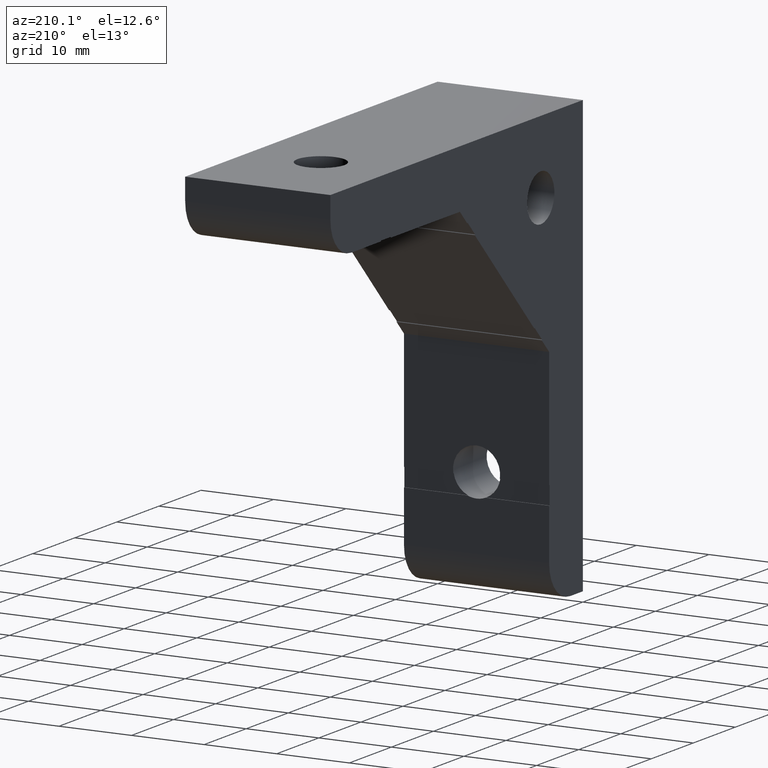
[diagram: clean part render]
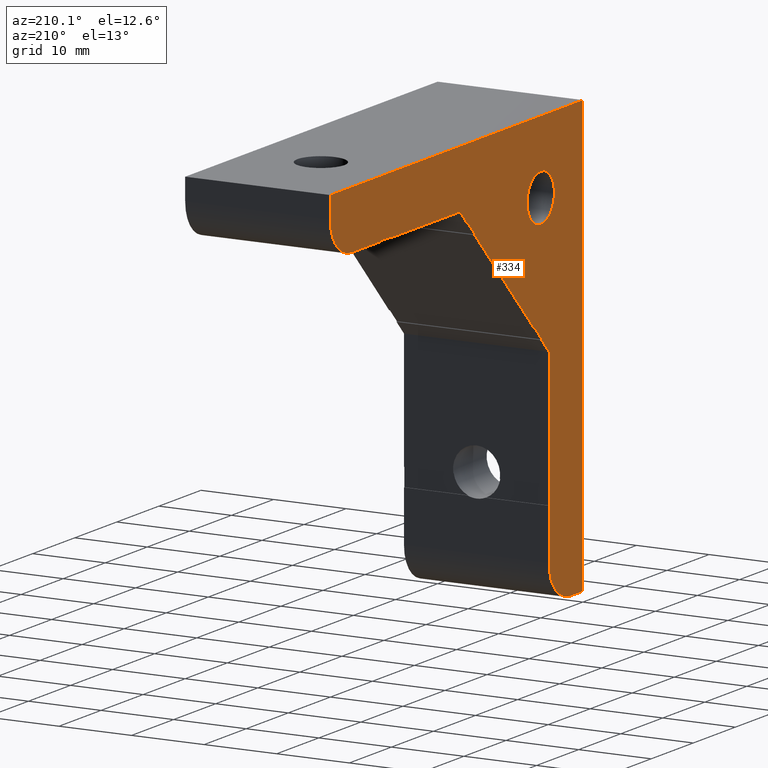
[diagram: same view with one face highlighted and labeled with its STEP entity id]
A machine part, auxiliary view. The second image highlights one B-rep face of the part: STEP entity #334.
In plain terms, the highlighted planar face has unit normal (-1, 0, 0).
Its self-contained STEP definition (entity closure, byte-faithful):
#79 = ORIENTED_EDGE ( 'NONE', *, *, #861, .T. ) ;
#80 = ORIENTED_EDGE ( 'NONE', *, *, #585, .T. ) ;
#81 = ORIENTED_EDGE ( 'NONE', *, *, #587, .T. ) ;
#82 = ORIENTED_EDGE ( 'NONE', *, *, #591, .T. ) ;
#83 = ORIENTED_EDGE ( 'NONE', *, *, #610, .T. ) ;
#84 = ORIENTED_EDGE ( 'NONE', *, *, #621, .T. ) ;
#85 = ORIENTED_EDGE ( 'NONE', *, *, #605, .T. ) ;
#86 = ORIENTED_EDGE ( 'NONE', *, *, #593, .T. ) ;
#87 = ORIENTED_EDGE ( 'NONE', *, *, #599, .T. ) ;
#88 = ORIENTED_EDGE ( 'NONE', *, *, #623, .T. ) ;
#89 = ORIENTED_EDGE ( 'NONE', *, *, #622, .T. ) ;
#90 = ORIENTED_EDGE ( 'NONE', *, *, #510, .T. ) ;
#91 = ORIENTED_EDGE ( 'NONE', *, *, #509, .T. ) ;
#92 = ORIENTED_EDGE ( 'NONE', *, *, #613, .T. ) ;
#93 = ORIENTED_EDGE ( 'NONE', *, *, #578, .T. ) ;
#94 = ORIENTED_EDGE ( 'NONE', *, *, #626, .T. ) ;
#95 = ORIENTED_EDGE ( 'NONE', *, *, #293, .T. ) ;
#96 = ORIENTED_EDGE ( 'NONE', *, *, #629, .T. ) ;
#97 = ORIENTED_EDGE ( 'NONE', *, *, #949, .T. ) ;
#98 = ORIENTED_EDGE ( 'NONE', *, *, #630, .T. ) ;
#99 = ORIENTED_EDGE ( 'NONE', *, *, #563, .T. ) ;
#135 = CARTESIAN_POINT ( 'NONE',  ( 0.0000000000000000000, 7.950000000000000200, -48.00000000000000000 ) ) ;
#136 = DIRECTION ( 'NONE',  ( 0.0000000000000000000, 1.000000000000000000, 0.0000000000000000000 ) ) ;
#143 = CARTESIAN_POINT ( 'NONE',  ( 0.0000000000000000000, 0.0000000000000000000, -60.00000000000000000 ) ) ;
#145 = CARTESIAN_POINT ( 'NONE',  ( 0.0000000000000000000, 29.21320342800000300, -8.000000000000000000 ) ) ;
#147 = CARTESIAN_POINT ( 'NONE',  ( 1.734723475976807100E-015, 2.999999999999996400, -60.00000000000000000 ) ) ;
#151 = CARTESIAN_POINT ( 'NONE',  ( 0.0000000000000000000, 9.767766949000003900, -27.44543647899999400 ) ) ;
#154 = CARTESIAN_POINT ( 'NONE',  ( 0.0000000000000000000, 0.0000000000000000000, 0.0000000000000000000 ) ) ;
#156 = CARTESIAN_POINT ( 'NONE',  ( 0.0000000000000000000, 45.50000000000000700, -8.000000000000000000 ) ) ;
#157 = CARTESIAN_POINT ( 'NONE',  ( 0.0000000000000000000, 10.00000000000000000, -13.25000000000000000 ) ) ;
#158 = CARTESIAN_POINT ( 'NONE',  ( 0.0000000000000000000, 48.00000000000000700, -7.900000000000000400 ) ) ;
#161 = CARTESIAN_POINT ( 'NONE',  ( 0.0000000000000000000, 45.50000000000000700, -7.900000000000000400 ) ) ;
#162 = CARTESIAN_POINT ( 'NONE',  ( 0.0000000000000000000, 7.900000006666666700, -48.00000000000000700 ) ) ;
#164 = CARTESIAN_POINT ( 'NONE',  ( 0.0000000000000000000, 27.44543647899999400, -9.767766949000003900 ) ) ;
#166 = CARTESIAN_POINT ( 'NONE',  ( 0.0000000000000000000, 7.999999993333334600, -45.50000000000000700 ) ) ;
#174 = CARTESIAN_POINT ( 'NONE',  ( 0.0000000000000000000, 9.697056280000001700, -27.37472581000000100 ) ) ;
#176 = CARTESIAN_POINT ( 'NONE',  ( 0.0000000000000000000, 60.00000000000000000, 0.0000000000000000000 ) ) ;
#178 = CARTESIAN_POINT ( 'NONE',  ( 1.734723479446252100E-015, 7.999999990000000900, -55.00000000051275600 ) ) ;
#185 = CARTESIAN_POINT ( 'NONE',  ( 0.0000000000000000000, 25.67766952599999500, -11.53553390199999900 ) ) ;
#196 = CARTESIAN_POINT ( 'NONE',  ( 0.0000000000000000000, 48.00000000000000700, -7.999999993333332800 ) ) ;
#197 = CARTESIAN_POINT ( 'NONE',  ( 0.0000000000000000000, 7.900000006666666700, -45.49999999777778500 ) ) ;
#198 = CARTESIAN_POINT ( 'NONE',  ( 0.0000000000000000000, 11.53553390199999900, -25.67766952599999900 ) ) ;
#200 = CARTESIAN_POINT ( 'NONE',  ( 0.0000000000000000000, 11.46482323300000100, -25.60695885700000600 ) ) ;
#203 = CARTESIAN_POINT ( 'NONE',  ( 0.0000000000000000000, 7.999999993333334600, -48.00000000000000700 ) ) ;
#204 = CARTESIAN_POINT ( 'NONE',  ( 0.0000000000000000000, 27.37472581000000100, -9.697056280000001700 ) ) ;
#205 = CARTESIAN_POINT ( 'NONE',  ( 0.0000000000000000000, 10.00000000000000000, -6.750000000000000900 ) ) ;
#209 = CARTESIAN_POINT ( 'NONE',  ( 0.0000000000000000000, 11.50017856700000100, -25.64231419100000100 ) ) ;
#210 = DIRECTION ( 'NONE',  ( 0.0000000000000000000, -0.7071067811865822100, 0.7071067811865128200 ) ) ;
#259 = CARTESIAN_POINT ( 'NONE',  ( 0.0000000000000000000, 7.999999987999999900, -29.21320343599999700 ) ) ;
#261 = CARTESIAN_POINT ( 'NONE',  ( 0.0000000000000000000, 25.60695885700000200, -11.46482323299999700 ) ) ;
#262 = CARTESIAN_POINT ( 'NONE',  ( 8.673617379884035500E-016, 60.00000000000000000, -3.000000000000000000 ) ) ;
#264 = CARTESIAN_POINT ( 'NONE',  ( 3.469446951953614200E-015, 54.99999999999999300, -7.999999989999999200 ) ) ;
#293 = EDGE_CURVE ( 'NONE', #1272, #925, #832, .T. ) ;
#334 = ADVANCED_FACE ( 'NONE', ( #1314, #1315 ), #396, .T. ) ;
#396 = PLANE ( 'NONE',  #542 ) ;
#397 = CARTESIAN_POINT ( 'NONE',  ( 0.0000000000000000000, 0.0000000000000000000, -60.00000000000000000 ) ) ;
#398 = DIRECTION ( 'NONE',  ( -1.000000000000000000, 0.0000000000000000000, 0.0000000000000000000 ) ) ;
#399 = DIRECTION ( 'NONE',  ( 0.0000000000000000000, 0.0000000000000000000, 1.000000000000000000 ) ) ;
#410 = CARTESIAN_POINT ( 'NONE',  ( 0.0000000000000000000, 9.767766960000001200, -27.44543646000000700 ) ) ;
#411 = DIRECTION ( 'NONE',  ( 0.0000000000000000000, -0.7071067811865500200, -0.7071067811865451300 ) ) ;
#414 = CARTESIAN_POINT ( 'NONE',  ( 0.0000000000000000000, 7.999999980000001900, -30.00000000000000000 ) ) ;
#415 = DIRECTION ( 'NONE',  ( -0.0000000000000000000, -0.0000000000000000000, -1.000000000000000000 ) ) ;
#426 = CARTESIAN_POINT ( 'NONE',  ( 0.0000000000000000000, 10.00000000000000000, -10.00000000000000000 ) ) ;
#427 = DIRECTION ( 'NONE',  ( 1.000000000000000000, 0.0000000000000000000, 0.0000000000000000000 ) ) ;
#428 = DIRECTION ( 'NONE',  ( 0.0000000000000000000, 0.0000000000000000000, -1.000000000000000000 ) ) ;
#460 = CARTESIAN_POINT ( 'NONE',  ( 0.0000000000000000000, 37.35660171799999300, -8.000000000000000000 ) ) ;
#461 = DIRECTION ( 'NONE',  ( 0.0000000000000000000, -1.000000000000000000, 0.0000000000000000000 ) ) ;
#462 = CARTESIAN_POINT ( 'NONE',  ( 0.0000000000000000000, 45.50000000000000000, -7.950000000000000200 ) ) ;
#463 = DIRECTION ( 'NONE',  ( 0.0000000000000000000, 0.0000000000000000000, -1.000000000000000000 ) ) ;
#474 = CARTESIAN_POINT ( 'NONE',  ( 0.0000000000000000000, 9.732411614000000100, -27.41008114399999600 ) ) ;
#475 = DIRECTION ( 'NONE',  ( 0.0000000000000000000, 0.7071067811865735500, -0.7071067811865214800 ) ) ;
#482 = CARTESIAN_POINT ( 'NONE',  ( 0.0000000000000000000, 7.950000000000000200, -45.50000000000000000 ) ) ;
#483 = DIRECTION ( 'NONE',  ( -0.0000000000000000000, -1.000000000000000000, -0.0000000000000000000 ) ) ;
#489 = EDGE_CURVE ( 'NONE', #873, #1267, #1320, .T. ) ;
#491 = EDGE_CURVE ( 'NONE', #1267, #906, #1324, .T. ) ;
#496 = EDGE_CURVE ( 'NONE', #945, #897, #1333, .T. ) ;
#509 = EDGE_CURVE ( 'NONE', #896, #867, #1357, .T. ) ;
#510 = EDGE_CURVE ( 'NONE', #901, #896, #1362, .T. ) ;
#542 = AXIS2_PLACEMENT_3D ( 'NONE', #397, #398, #399 ) ;
#547 = AXIS2_PLACEMENT_3D ( 'NONE', #426, #427, #428 ) ;
#559 = AXIS2_PLACEMENT_3D ( 'NONE', #1144, #1145, #1146 ) ;
#563 = EDGE_CURVE ( 'NONE', #914, #873, #1378, .T. ) ;
#567 = EDGE_CURVE ( 'NONE', #906, #937, #1388, .T. ) ;
#578 = EDGE_CURVE ( 'NONE', #904, #944, #1408, .T. ) ;
#582 = EDGE_CURVE ( 'NONE', #937, #902, #1358, .T. ) ;
#585 = EDGE_CURVE ( 'NONE', #943, #918, #1344, .T. ) ;
#587 = EDGE_CURVE ( 'NONE', #918, #869, #1368, .T. ) ;
#591 = EDGE_CURVE ( 'NONE', #869, #865, #973, .T. ) ;
#593 = EDGE_CURVE ( 'NONE', #1275, #1278, #978, .T. ) ;
#595 = EDGE_CURVE ( 'NONE', #897, #945, #980, .T. ) ;
#599 = EDGE_CURVE ( 'NONE', #1278, #936, #985, .T. ) ;
#605 = EDGE_CURVE ( 'NONE', #916, #1275, #997, .T. ) ;
#610 = EDGE_CURVE ( 'NONE', #865, #894, #1012, .T. ) ;
#613 = EDGE_CURVE ( 'NONE', #867, #904, #1020, .T. ) ;
#621 = EDGE_CURVE ( 'NONE', #894, #916, #1038, .T. ) ;
#622 = EDGE_CURVE ( 'NONE', #898, #901, #1040, .T. ) ;
#623 = EDGE_CURVE ( 'NONE', #936, #898, #1043, .T. ) ;
#626 = EDGE_CURVE ( 'NONE', #944, #1272, #1048, .T. ) ;
#629 = EDGE_CURVE ( 'NONE', #925, #938, #1054, .T. ) ;
#630 = EDGE_CURVE ( 'NONE', #940, #914, #1056, .T. ) ;
#635 = AXIS2_PLACEMENT_3D ( 'NONE', #1158, #1159, #1160 ) ;
#636 = AXIS2_PLACEMENT_3D ( 'NONE', #1163, #1164, #1165 ) ;
#744 = EDGE_LOOP ( 'NONE', ( #813, #814, #815, #816, #79, #80, #81, #82, #83, #84, #85, #86, #87, #88, #89, #90, #91, #92, #93, #94, #95, #96, #97, #98, #99 ) ) ;
#748 = EDGE_LOOP ( 'NONE', ( #811, #812 ) ) ;
#811 = ORIENTED_EDGE ( 'NONE', *, *, #595, .T. ) ;
#812 = ORIENTED_EDGE ( 'NONE', *, *, #496, .T. ) ;
#813 = ORIENTED_EDGE ( 'NONE', *, *, #489, .T. ) ;
#814 = ORIENTED_EDGE ( 'NONE', *, *, #491, .T. ) ;
#815 = ORIENTED_EDGE ( 'NONE', *, *, #567, .T. ) ;
#816 = ORIENTED_EDGE ( 'NONE', *, *, #582, .T. ) ;
#832 = LINE ( 'NONE', #1261, #833 ) ;
#833 = VECTOR ( 'NONE', #1248, 1000.000000000000200 ) ;
#861 = EDGE_CURVE ( 'NONE', #902, #943, #1064, .T. ) ;
#865 = VERTEX_POINT ( 'NONE', #143 ) ;
#867 = VERTEX_POINT ( 'NONE', #145 ) ;
#869 = VERTEX_POINT ( 'NONE', #147 ) ;
#873 = VERTEX_POINT ( 'NONE', #151 ) ;
#894 = VERTEX_POINT ( 'NONE', #154 ) ;
#896 = VERTEX_POINT ( 'NONE', #156 ) ;
#897 = VERTEX_POINT ( 'NONE', #157 ) ;
#898 = VERTEX_POINT ( 'NONE', #158 ) ;
#901 = VERTEX_POINT ( 'NONE', #161 ) ;
#902 = VERTEX_POINT ( 'NONE', #162 ) ;
#904 = VERTEX_POINT ( 'NONE', #164 ) ;
#906 = VERTEX_POINT ( 'NONE', #166 ) ;
#914 = VERTEX_POINT ( 'NONE', #174 ) ;
#916 = VERTEX_POINT ( 'NONE', #176 ) ;
#918 = VERTEX_POINT ( 'NONE', #178 ) ;
#925 = VERTEX_POINT ( 'NONE', #185 ) ;
#936 = VERTEX_POINT ( 'NONE', #196 ) ;
#937 = VERTEX_POINT ( 'NONE', #197 ) ;
#938 = VERTEX_POINT ( 'NONE', #198 ) ;
#940 = VERTEX_POINT ( 'NONE', #200 ) ;
#943 = VERTEX_POINT ( 'NONE', #203 ) ;
#944 = VERTEX_POINT ( 'NONE', #204 ) ;
#945 = VERTEX_POINT ( 'NONE', #205 ) ;
#949 = EDGE_CURVE ( 'NONE', #938, #940, #1072, .T. ) ;
#973 = LINE ( 'NONE', #1154, #974 ) ;
#974 = VECTOR ( 'NONE', #1155, 1000.000000000000000 ) ;
#978 = CIRCLE ( 'NONE', #635, 4.999999999999997300 ) ;
#980 = CIRCLE ( 'NONE', #636, 3.249999999999999600 ) ;
#985 = LINE ( 'NONE', #1174, #986 ) ;
#986 = VECTOR ( 'NONE', #1175, 1000.000000000000000 ) ;
#997 = LINE ( 'NONE', #1186, #999 ) ;
#999 = VECTOR ( 'NONE', #1187, 1000.000000000000000 ) ;
#1012 = LINE ( 'NONE', #1196, #1013 ) ;
#1013 = VECTOR ( 'NONE', #1197, 1000.000000000000000 ) ;
#1020 = LINE ( 'NONE', #1202, #1021 ) ;
#1021 = VECTOR ( 'NONE', #1203, 1000.000000000000100 ) ;
#1038 = LINE ( 'NONE', #1218, #1039 ) ;
#1039 = VECTOR ( 'NONE', #1219, 1000.000000000000000 ) ;
#1040 = LINE ( 'NONE', #1220, #1041 ) ;
#1041 = VECTOR ( 'NONE', #1221, 1000.000000000000000 ) ;
#1043 = LINE ( 'NONE', #1222, #1044 ) ;
#1044 = VECTOR ( 'NONE', #1223, 1000.000000000000000 ) ;
#1048 = LINE ( 'NONE', #1229, #1049 ) ;
#1049 = VECTOR ( 'NONE', #1230, 1000.000000000000000 ) ;
#1054 = LINE ( 'NONE', #1235, #1055 ) ;
#1055 = VECTOR ( 'NONE', #1236, 1000.000000000000000 ) ;
#1056 = LINE ( 'NONE', #1237, #1057 ) ;
#1057 = VECTOR ( 'NONE', #1238, 1000.000000000000000 ) ;
#1064 = LINE ( 'NONE', #135, #1065 ) ;
#1065 = VECTOR ( 'NONE', #136, 1000.000000000000000 ) ;
#1072 = LINE ( 'NONE', #209, #1074 ) ;
#1074 = VECTOR ( 'NONE', #210, 1000.000000000000200 ) ;
#1126 = CARTESIAN_POINT ( 'NONE',  ( 0.0000000000000000000, 27.41008114399999600, -9.732411614000000100 ) ) ;
#1127 = DIRECTION ( 'NONE',  ( 0.0000000000000000000, -0.7071067811865214800, 0.7071067811865735500 ) ) ;
#1134 = CARTESIAN_POINT ( 'NONE',  ( 0.0000000000000000000, 7.900000019999999300, -30.00000000000000000 ) ) ;
#1135 = DIRECTION ( 'NONE',  ( -0.0000000000000000000, -0.0000000000000000000, -1.000000000000000000 ) ) ;
#1140 = CARTESIAN_POINT ( 'NONE',  ( 0.0000000000000000000, 7.999999980000001900, -30.00000000000000000 ) ) ;
#1141 = DIRECTION ( 'NONE',  ( -0.0000000000000000000, -0.0000000000000000000, -1.000000000000000000 ) ) ;
#1144 = CARTESIAN_POINT ( 'NONE',  ( 3.469446951953614200E-015, 2.999999999999993300, -55.00000000000000000 ) ) ;
#1145 = DIRECTION ( 'NONE',  ( -1.000000000000000000, -3.469446951953616700E-016, -0.0000000000000000000 ) ) ;
#1146 = DIRECTION ( 'NONE',  ( 3.469446951953616200E-016, -1.000000000000000000, 0.0000000000000000000 ) ) ;
#1154 = CARTESIAN_POINT ( 'NONE',  ( 0.0000000000000000000, 30.00000000000000000, -60.00000000000000000 ) ) ;
#1155 = DIRECTION ( 'NONE',  ( -0.0000000000000000000, -1.000000000000000000, -0.0000000000000000000 ) ) ;
#1158 = CARTESIAN_POINT ( 'NONE',  ( 3.469446951953614200E-015, 54.99999999999999300, -3.000000000000000000 ) ) ;
#1159 = DIRECTION ( 'NONE',  ( -1.000000000000000000, -3.469446951953613700E-016, -0.0000000000000000000 ) ) ;
#1160 = DIRECTION ( 'NONE',  ( 3.469446951953616200E-016, -1.000000000000000000, 0.0000000000000000000 ) ) ;
#1163 = CARTESIAN_POINT ( 'NONE',  ( 0.0000000000000000000, 10.00000000000000000, -10.00000000000000000 ) ) ;
#1164 = DIRECTION ( 'NONE',  ( 1.000000000000000000, 0.0000000000000000000, 0.0000000000000000000 ) ) ;
#1165 = DIRECTION ( 'NONE',  ( 0.0000000000000000000, 0.0000000000000000000, -1.000000000000000000 ) ) ;
#1174 = CARTESIAN_POINT ( 'NONE',  ( 0.0000000000000000000, 30.00000000000000000, -7.999999979999996600 ) ) ;
#1175 = DIRECTION ( 'NONE',  ( -0.0000000000000000000, -1.000000000000000000, -0.0000000000000000000 ) ) ;
#1186 = CARTESIAN_POINT ( 'NONE',  ( 0.0000000000000000000, 60.00000000000000000, -30.00000000000000000 ) ) ;
#1187 = DIRECTION ( 'NONE',  ( -0.0000000000000000000, -0.0000000000000000000, -1.000000000000000000 ) ) ;
#1196 = CARTESIAN_POINT ( 'NONE',  ( 0.0000000000000000000, 0.0000000000000000000, -30.00000000000000000 ) ) ;
#1197 = DIRECTION ( 'NONE',  ( 0.0000000000000000000, 0.0000000000000000000, 1.000000000000000000 ) ) ;
#1202 = CARTESIAN_POINT ( 'NONE',  ( 0.0000000000000000000, 29.21320344000000400, -7.999999979999998300 ) ) ;
#1203 = DIRECTION ( 'NONE',  ( 0.0000000000000000000, -0.7071067811865474600, -0.7071067811865474600 ) ) ;
#1218 = CARTESIAN_POINT ( 'NONE',  ( 0.0000000000000000000, 30.00000000000000000, 0.0000000000000000000 ) ) ;
#1219 = DIRECTION ( 'NONE',  ( 0.0000000000000000000, 1.000000000000000000, 0.0000000000000000000 ) ) ;
#1220 = CARTESIAN_POINT ( 'NONE',  ( 0.0000000000000000000, 46.75000000000000000, -7.900000000000000400 ) ) ;
#1221 = DIRECTION ( 'NONE',  ( -0.0000000000000000000, -1.000000000000000000, -0.0000000000000000000 ) ) ;
#1222 = CARTESIAN_POINT ( 'NONE',  ( 0.0000000000000000000, 48.00000000000000000, -7.950000000000000200 ) ) ;
#1223 = DIRECTION ( 'NONE',  ( 0.0000000000000000000, 0.0000000000000000000, 1.000000000000000000 ) ) ;
#1229 = CARTESIAN_POINT ( 'NONE',  ( 0.0000000000000000000, 27.37472579999999700, -9.697056300000007000 ) ) ;
#1230 = DIRECTION ( 'NONE',  ( 0.0000000000000000000, -0.7071067811865495700, -0.7071067811865454600 ) ) ;
#1235 = CARTESIAN_POINT ( 'NONE',  ( 0.0000000000000000000, 25.67766954000000000, -11.53553387999999000 ) ) ;
#1236 = DIRECTION ( 'NONE',  ( 0.0000000000000000000, -0.7071067811865473500, -0.7071067811865477900 ) ) ;
#1237 = CARTESIAN_POINT ( 'NONE',  ( 0.0000000000000000000, 11.46482322000000100, -25.60695888000000400 ) ) ;
#1238 = DIRECTION ( 'NONE',  ( 0.0000000000000000000, -0.7071067811865482400, -0.7071067811865469100 ) ) ;
#1248 = DIRECTION ( 'NONE',  ( 0.0000000000000000000, 0.7071067811865128200, -0.7071067811865822100 ) ) ;
#1261 = CARTESIAN_POINT ( 'NONE',  ( 0.0000000000000000000, 25.64231419100000100, -11.50017856700000100 ) ) ;
#1267 = VERTEX_POINT ( 'NONE', #259 ) ;
#1272 = VERTEX_POINT ( 'NONE', #261 ) ;
#1275 = VERTEX_POINT ( 'NONE', #262 ) ;
#1278 = VERTEX_POINT ( 'NONE', #264 ) ;
#1314 = FACE_BOUND ( 'NONE', #748, .T. ) ;
#1315 = FACE_OUTER_BOUND ( 'NONE', #744, .T. ) ;
#1320 = LINE ( 'NONE', #410, #1321 ) ;
#1321 = VECTOR ( 'NONE', #411, 1000.000000000000100 ) ;
#1324 = LINE ( 'NONE', #414, #1325 ) ;
#1325 = VECTOR ( 'NONE', #415, 1000.000000000000000 ) ;
#1333 = CIRCLE ( 'NONE', #547, 3.249999999999999600 ) ;
#1344 = LINE ( 'NONE', #1140, #1345 ) ;
#1345 = VECTOR ( 'NONE', #1141, 1000.000000000000000 ) ;
#1357 = LINE ( 'NONE', #460, #1361 ) ;
#1358 = LINE ( 'NONE', #1134, #1364 ) ;
#1361 = VECTOR ( 'NONE', #461, 1000.000000000000000 ) ;
#1362 = LINE ( 'NONE', #462, #1363 ) ;
#1363 = VECTOR ( 'NONE', #463, 1000.000000000000000 ) ;
#1364 = VECTOR ( 'NONE', #1135, 1000.000000000000000 ) ;
#1368 = CIRCLE ( 'NONE', #559, 4.999999999999997300 ) ;
#1378 = LINE ( 'NONE', #474, #1380 ) ;
#1380 = VECTOR ( 'NONE', #475, 1000.000000000000000 ) ;
#1383 = VECTOR ( 'NONE', #1127, 1000.000000000000000 ) ;
#1388 = LINE ( 'NONE', #482, #1389 ) ;
#1389 = VECTOR ( 'NONE', #483, 1000.000000000000000 ) ;
#1408 = LINE ( 'NONE', #1126, #1383 ) ;